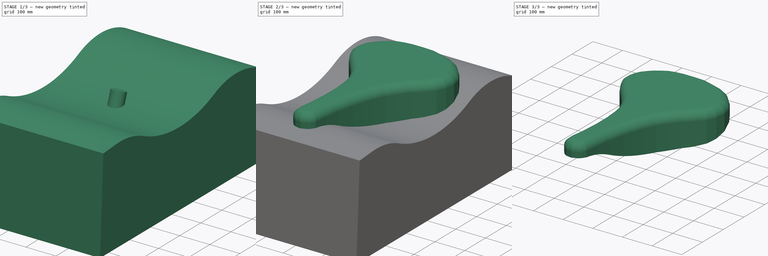
[diagram: build sequence overview — one tinted view per stage of 3, left to right]
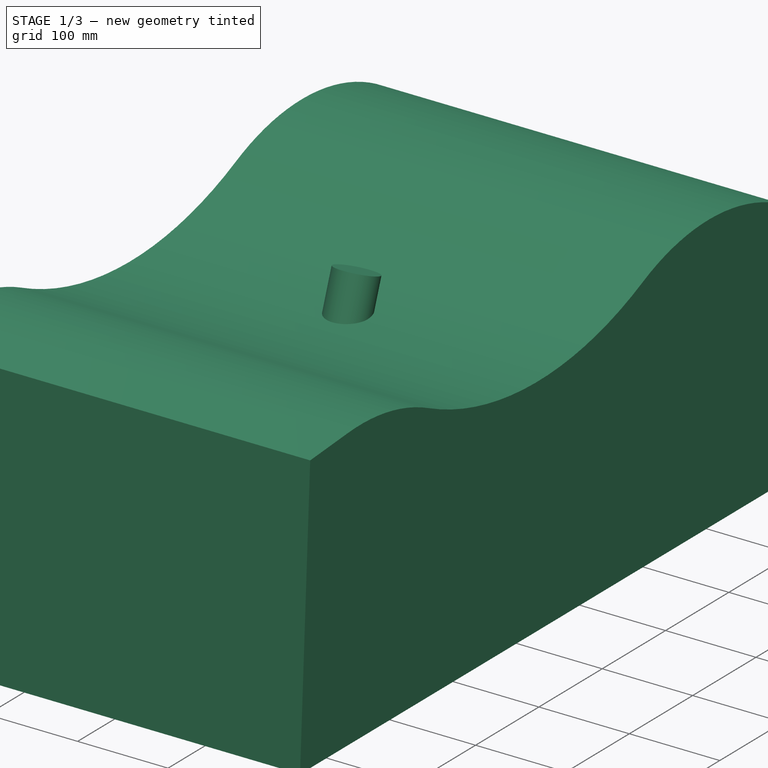
[diagram: stage 1 of 3 — iso view after this stage's code; geometry added in this stage tinted green]
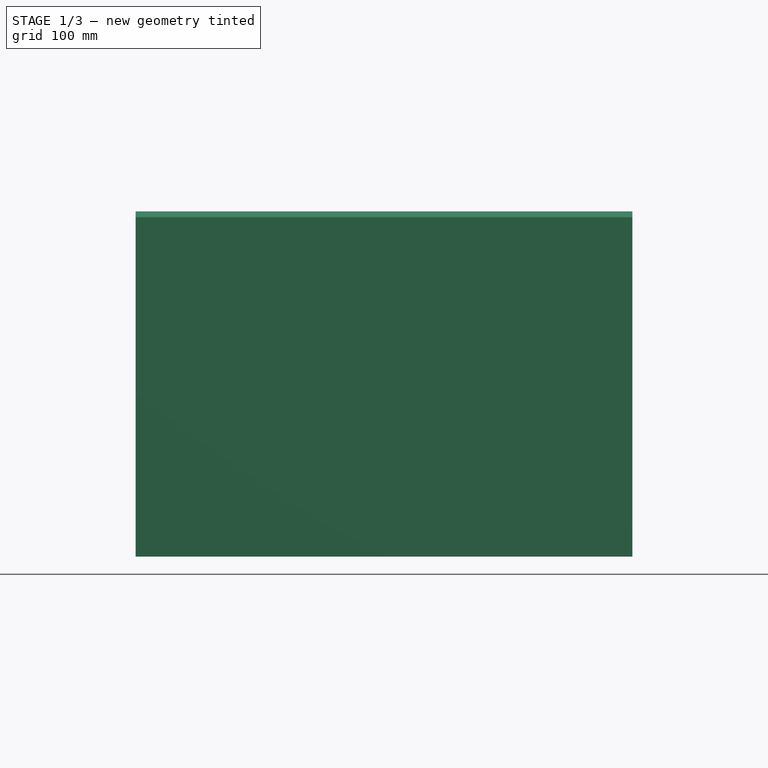
[diagram: stage 1 of 3 — front view after this stage's code; geometry added in this stage tinted green]
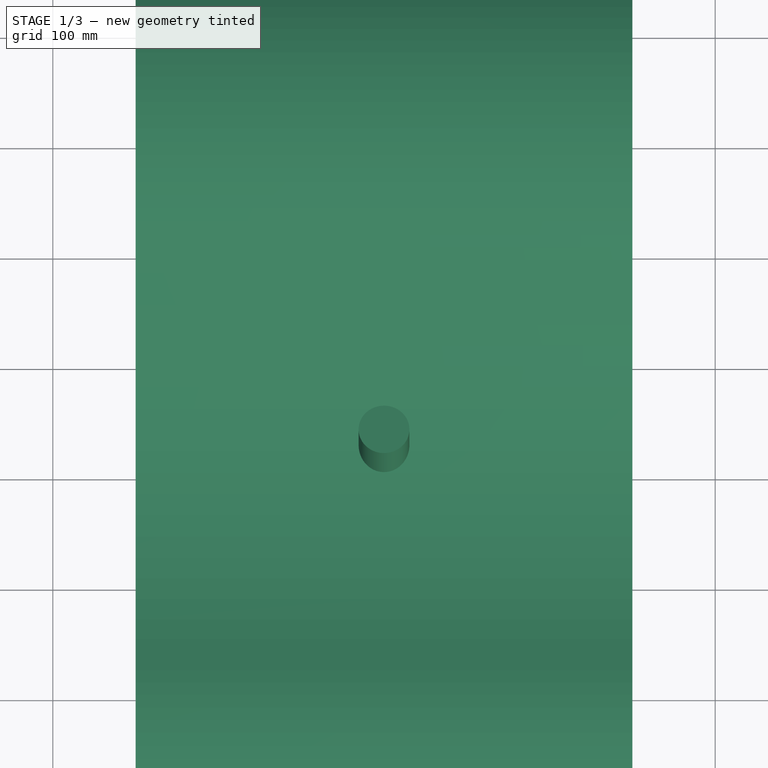
[diagram: stage 1 of 3 — top view after this stage's code; geometry added in this stage tinted green]
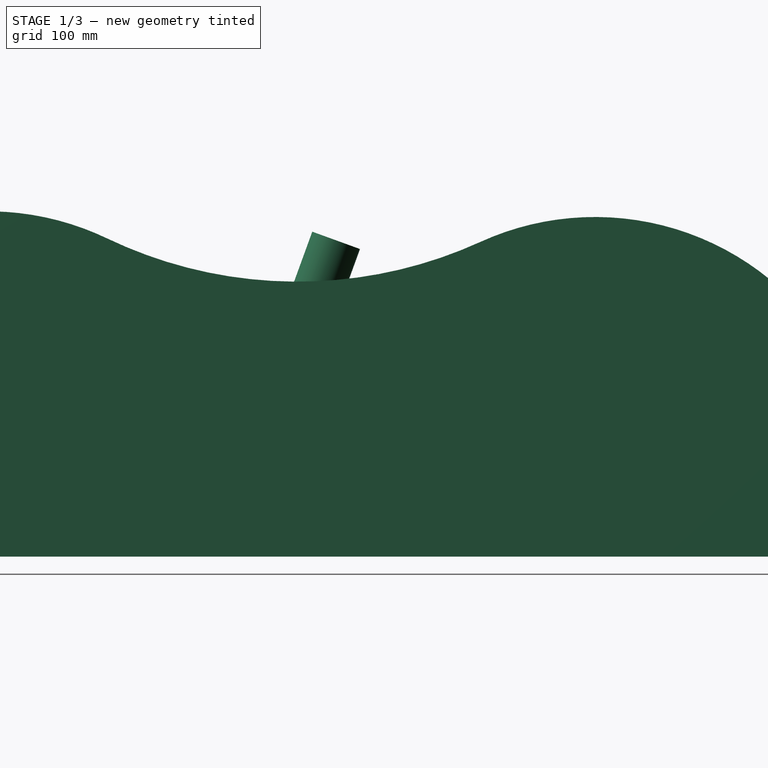
[diagram: stage 1 of 3 — right view after this stage's code; geometry added in this stage tinted green]
FCSTD DOCUMENT  (FreeCAD 0.16R)
Label: SeatBrooks
License: All rights reserved
LicenseURL: http://en.wikipedia.org/wiki/All_rights_reserved
objects: Sketcher::SketchObject×3, PartDesign::Pad×2, PartDesign::Fillet×2, Part::Cut×2, Image::ImagePlane×1, Part::Cylinder×1
note: 12 computed .brp shape members not serialized (recipe doc carries the construction recipe); baked Part::Feature solids carry a one-line shape summary decoded from their .brp

FEATURE [Sketcher::SketchObject] Sketch
  Placement = pos=(0,3.73655,35.5509) rot=(1,0,0;3.03687rad)
  sketch-geometry (1):
    g0: Circle CenterX=11.3368 CenterY=-95.2667 CenterZ=0 NormalX=0 NormalY=0 NormalZ=1 Radius=40
  constraints (1):
    c: Radius(g0) = 40
FEATURE [Sketcher::SketchObject] Sketch004
  Placement = pos=(0,0,0) rot=(0.57735,0.57735,0.57735;2.0944rad)
  sketch-geometry (7):
    g0: ArcOfCircle CenterX=-275 CenterY=-175.307 CenterZ=0 NormalX=0 NormalY=0 NormalZ=1 Radius=250 StartAngle=1.12409 EndAngle=1.6477
    g1: ArcOfCircle CenterX=5.51294 CenterY=410.316 CenterZ=0 NormalX=0 NormalY=0 NormalZ=1 Radius=399.34 StartAngle=4.26568 EndAngle=5.14035
    g2: ArcOfCircle CenterX=275 CenterY=-180.462 CenterZ=0 NormalX=0 NormalY=0 NormalZ=1 Radius=250 StartAngle=0.789149 EndAngle=1.99876
    g3: LineSegment StartX=-294.206 StartY=73.9538 StartZ=0 EndX=-354.007 EndY=69.346 EndZ=0
    g4: LineSegment StartX=-354.007 StartY=69.346 StartZ=0 EndX=-369.997 EndY=-238.126 EndZ=0
    g5: LineSegment StartX=-369.997 StartY=-238.126 StartZ=0 EndX=537.75 EndY=-238.126 EndZ=0
    g6: LineSegment StartX=537.75 StartY=-238.126 StartZ=0 EndX=451.112 EndY=-3.02373 EndZ=0
  constraints (14):
    c: Coincident(g1,g2)
    c: Tangent(g1,g2)
    c: Coincident(g1,g0)
    c: Tangent(g1,g0)
    c: DistanceX(g2) = 275
    c: DistanceX(g0) = -275
    c: Radius(g2) = 250
    c: Radius(g0) = 250
    c: Tangent(g0,g3) = -1.5708
    c: Coincident(g3,g4)
    c: Coincident(g4,g5)
    c: Horizontal(g5)
    c: Coincident(g5,g6)
    c: Coincident(g6,g2)
FEATURE [PartDesign::Pad] Pad001
  Length = 450
  Length2 = 100
  Midplane = true
  Placement = pos=(0,0,0) rot=(0.57735,0.57735,0.57735;2.0944rad)
  Sketch = -> Sketch004
  Type = 0
FEATURE [Part::Cylinder] Cylinder
  Angle = 360
  Height = 60
  Placement = pos=(0,20,-8) rot=(-1,0,0;0.349066rad)
  Radius = 23
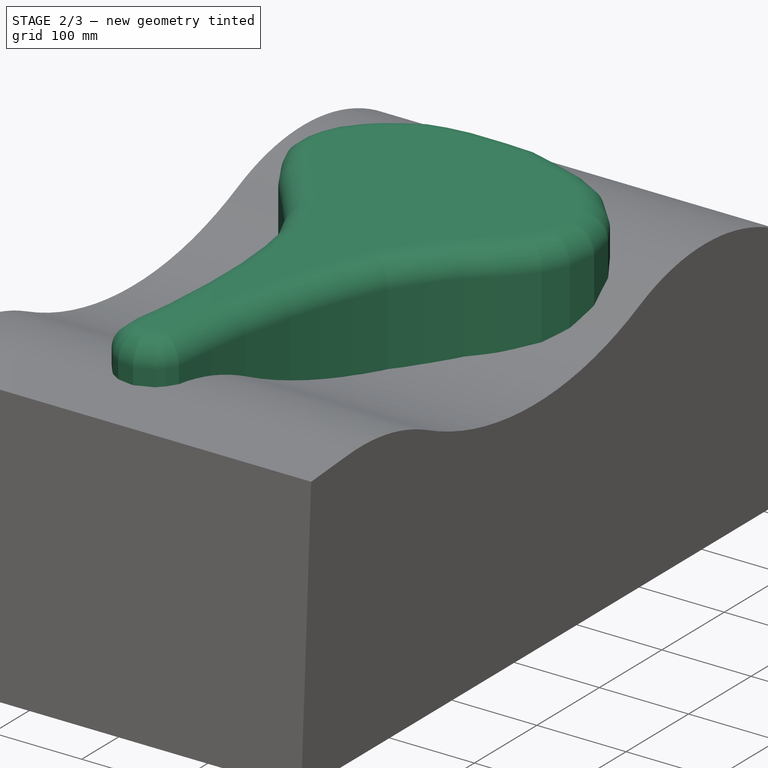
[diagram: stage 2 of 3 — iso view after this stage's code; geometry added in this stage tinted green]
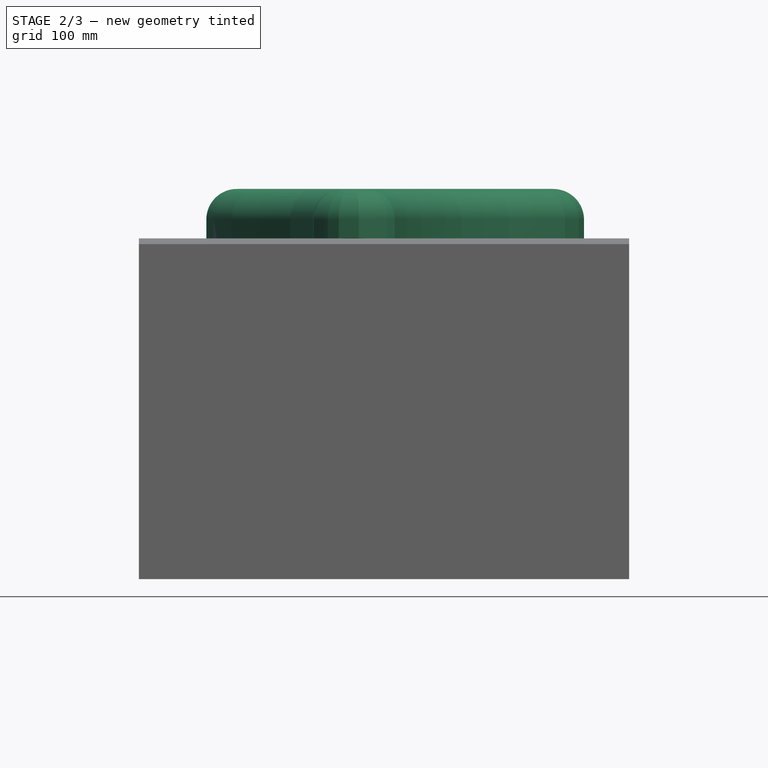
[diagram: stage 2 of 3 — front view after this stage's code; geometry added in this stage tinted green]
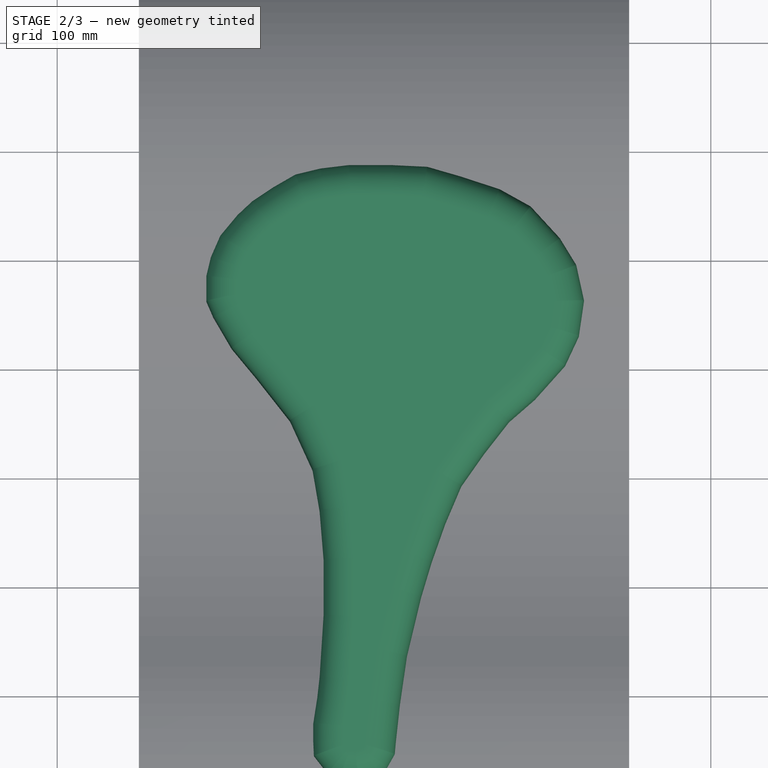
[diagram: stage 2 of 3 — top view after this stage's code; geometry added in this stage tinted green]
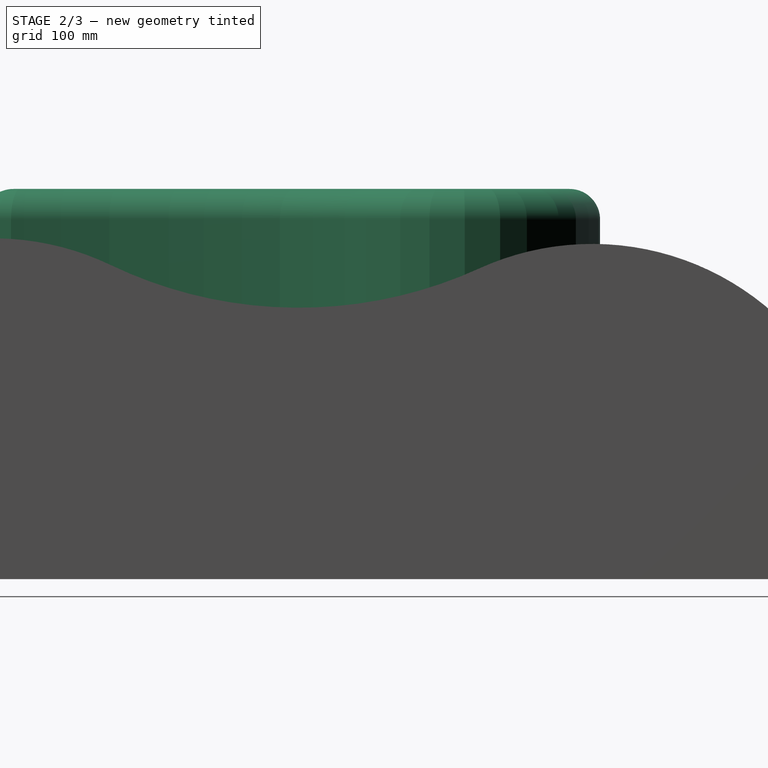
[diagram: stage 2 of 3 — right view after this stage's code; geometry added in this stage tinted green]
FEATURE [Image::ImagePlane] ImagePlane
  XSize = 396
  YSize = 596
FEATURE [Sketcher::SketchObject] Sketch003
  sketch-geometry (50):
    g0: LineSegment StartX=-59.0617 StartY=-187.443 StartZ=0 EndX=-55.4267 EndY=-130.742 EndZ=0
    g1: LineSegment StartX=-55.4267 StartY=-130.742 StartZ=0 EndX=-55.4267 EndY=-79.3256 EndZ=0
    g2: LineSegment StartX=-55.4267 StartY=-79.3256 StartZ=0 EndX=-59.1372 EndY=-34.27 EndZ=0
    g3: LineSegment StartX=-59.1372 StartY=-34.27 StartZ=0 EndX=-65.498 EndY=2.83452 EndZ=0
    g4: LineSegment StartX=-65.498 StartY=2.83452 StartZ=0 EndX=-86.1705 EndY=47.8901 EndZ=0
    g5: LineSegment StartX=-86.1705 StartY=47.8901 StartZ=0 EndX=-117.092 EndY=87.0917 EndZ=0
    g6: LineSegment StartX=-117.092 StartY=87.0917 StartZ=0 EndX=-139.752 EndY=114.284 EndZ=0
    g7: LineSegment StartX=-139.752 StartY=114.284 StartZ=0 EndX=-156.585 EndY=142.77 EndZ=0
    g8: LineSegment StartX=-156.585 StartY=142.77 StartZ=0 EndX=-163.06 EndY=157.661 EndZ=0
    g9: LineSegment StartX=-163.06 StartY=157.661 StartZ=0 EndX=-163.06 EndY=180.321 EndZ=0
    g10: LineSegment StartX=-163.06 StartY=180.321 StartZ=0 EndX=-158.905 EndY=197.667 EndZ=0
    g11: LineSegment StartX=-158.905 StartY=197.667 StartZ=0 EndX=-150.207 EndY=217.437 EndZ=0
    g12: LineSegment StartX=-150.207 StartY=217.437 StartZ=0 EndX=-134.392 EndY=236.415 EndZ=0
    g13: LineSegment StartX=-134.392 StartY=236.415 StartZ=0 EndX=-120.877 EndY=248.991 EndZ=0
    g14: LineSegment StartX=-120.877 StartY=248.991 StartZ=0 EndX=-101.899 EndY=261.644 EndZ=0
    g15: LineSegment StartX=-101.899 StartY=261.644 StartZ=0 EndX=-81.3389 EndY=273.505 EndZ=0
    g16: LineSegment StartX=-81.3389 StartY=273.505 StartZ=0 EndX=-58.4067 EndY=279.04 EndZ=0
    g17: LineSegment StartX=-58.4067 StartY=279.04 StartZ=0 EndX=-32.3115 EndY=282.203 EndZ=0
    g18: LineSegment StartX=-32.3115 StartY=282.203 StartZ=0 EndX=6.43597 EndY=282.203 EndZ=0
    g19: LineSegment StartX=6.43597 StartY=282.203 StartZ=0 EndX=39.6481 EndY=280.622 EndZ=0
    g20: LineSegment StartX=39.6481 StartY=280.622 StartZ=0 EndX=69.6971 EndY=271.924 EndZ=0
    g21: LineSegment StartX=69.6971 StartY=271.924 StartZ=0 EndX=106.072 EndY=260.062 EndZ=0
    g22: LineSegment StartX=106.072 StartY=260.062 StartZ=0 EndX=134.54 EndY=244.247 EndZ=0
    g23: LineSegment StartX=134.54 StartY=244.247 StartZ=0 EndX=161.426 EndY=214.988 EndZ=0
    g24: LineSegment StartX=161.426 StartY=214.988 StartZ=0 EndX=176.45 EndY=190.475 EndZ=0
    g25: LineSegment StartX=176.45 StartY=190.475 StartZ=0 EndX=183.567 EndY=158.053 EndZ=0
    g26: LineSegment StartX=183.567 StartY=158.053 StartZ=0 EndX=178.823 EndY=125.632 EndZ=0
    g27: LineSegment StartX=178.823 StartY=125.632 StartZ=0 EndX=166.17 EndY=98.7461 EndZ=0
    g28: LineSegment StartX=166.17 StartY=98.7461 StartZ=0 EndX=138.494 EndY=67.9063 EndZ=0
    g29: LineSegment StartX=138.494 StartY=67.9063 StartZ=0 EndX=114.771 EndY=47.3464 EndZ=0
    g30: LineSegment StartX=114.771 StartY=47.3464 StartZ=0 EndX=91.8385 EndY=18.0881 EndZ=0
    g31: LineSegment StartX=91.8385 StartY=18.0881 StartZ=0 EndX=70.8997 EndY=-11.6832 EndZ=0
    g32: LineSegment StartX=70.8997 StartY=-11.6832 StartZ=0 EndX=56.0089 EndY=-46.6441 EndZ=0
    g33: LineSegment StartX=56.0089 StartY=-46.6441 StartZ=0 EndX=43.7079 EndY=-81.6049 EndZ=0
    g34: LineSegment StartX=43.7079 StartY=-81.6049 StartZ=0 EndX=33.9966 EndY=-113.976 EndZ=0
    g35: LineSegment StartX=33.9966 StartY=-113.976 StartZ=0 EndX=21.0481 EndY=-168.36 EndZ=0
    g36: LineSegment StartX=21.0481 StartY=-168.36 StartZ=0 EndX=14.6173 EndY=-212.886 EndZ=0
    g37: LineSegment StartX=14.6173 StartY=-212.886 StartZ=0 EndX=10.9069 EndY=-246.81 EndZ=0
    g38: LineSegment StartX=10.9069 StartY=-246.81 StartZ=0 EndX=9.84675 EndY=-258.472 EndZ=0
    g39: LineSegment StartX=9.84675 StartY=-258.472 StartZ=0 EndX=2.95589 EndY=-270.663 EndZ=0
    g40: LineSegment StartX=2.95589 StartY=-270.663 StartZ=0 EndX=-3.93494 EndY=-277.554 EndZ=0
    g41: LineSegment StartX=-3.93494 StartY=-277.554 StartZ=0 EndX=-23.0173 EndY=-284.975 EndZ=0
    g42: LineSegment StartX=-23.0173 StartY=-284.975 StartZ=0 EndX=-41.5696 EndY=-282.325 EndZ=0
    g43: LineSegment StartX=-41.5696 StartY=-282.325 StartZ=0 EndX=-51.6408 EndY=-275.964 EndZ=0
    g44: LineSegment StartX=-51.6408 StartY=-275.964 StartZ=0 EndX=-55.3513 EndY=-271.723 EndZ=0
    g45: LineSegment StartX=-55.3513 StartY=-271.723 StartZ=0 EndX=-64.3624 EndY=-260.062 EndZ=0
    g46: LineSegment StartX=-64.3624 StartY=-260.062 StartZ=0 EndX=-64.8924 EndY=-247.34 EndZ=0
    g47: LineSegment StartX=-64.8924 StartY=-247.34 StartZ=0 EndX=-64.8924 EndY=-230.378 EndZ=0
    g48: LineSegment StartX=-64.8924 StartY=-230.378 StartZ=0 EndX=-61.182 EndY=-206.525 EndZ=0
    g49: LineSegment StartX=-61.182 StartY=-206.525 StartZ=0 EndX=-59.0617 EndY=-187.443 EndZ=0
  constraints (54):
    c: Coincident(g0,g1)
    c: Vertical(g1)
    c: Coincident(g1,g2)
    c: Coincident(g2,g3)
    c: Coincident(g3,g4)
    c: Coincident(g4,g5)
    c: Coincident(g5,g6)
    c: Coincident(g6,g7)
    c: Coincident(g7,g8)
    c: Coincident(g8,g9)
    c: Vertical(g9)
    c: Coincident(g9,g10)
    c: Coincident(g10,g11)
    c: Coincident(g11,g12)
    c: Coincident(g12,g13)
    c: Coincident(g13,g14)
    c: Coincident(g14,g15)
    c: Coincident(g15,g16)
    c: Coincident(g16,g17)
    c: Coincident(g17,g18)
    c: Horizontal(g18)
    c: Coincident(g18,g19)
    c: Coincident(g19,g20)
    c: Coincident(g20,g21)
    c: Coincident(g21,g22)
    c: Coincident(g22,g23)
    c: Coincident(g23,g24)
    c: Coincident(g24,g25)
    c: Coincident(g25,g26)
    c: Coincident(g26,g27)
    c: Coincident(g27,g28)
    c: Coincident(g28,g29)
    c: Coincident(g29,g30)
    c: Coincident(g30,g31)
    c: Coincident(g31,g32)
    c: Coincident(g32,g33)
    c: Coincident(g33,g34)
    c: Coincident(g34,g35)
    c: Coincident(g35,g36)
    c: Coincident(g36,g37)
    c: Coincident(g37,g38)
    c: Coincident(g38,g39)
    c: Coincident(g39,g40)
    c: Coincident(g40,g41)
    c: Coincident(g41,g42)
    c: Coincident(g42,g43)
    c: Coincident(g43,g44)
    c: Coincident(g44,g45)
    c: Coincident(g45,g46)
    c: Coincident(g46,g47)
    c: Vertical(g47)
    c: Coincident(g47,g48)
    c: Coincident(g48,g49)
    c: Coincident(g49,g0)
FEATURE [PartDesign::Pad] Pad
  Length = 120
  Length2 = 100
  Sketch = -> Sketch003
  Type = 0
FEATURE [PartDesign::Fillet] Fillet
  Base = -> Pad [Edge4,Edge7,Edge10,Edge13,Edge16,Edge19,Edge22,Edge25,Edge28,Edge31,Edge34,Edge37,Edge40,Edge43,Edge46,Edge49,Edge52,Edge55,Edge58,Edge61,Edge64,Edge67,Edge70,Edge73,Edge76,Edge79,Edge82,Edge85,Edge88,Edge91,Edge94,Edge97,Edge100,Edge103,Edge106,Edge109,Edge112,Edge115,Edge118,Edge121,+10 more]
  Radius = 28
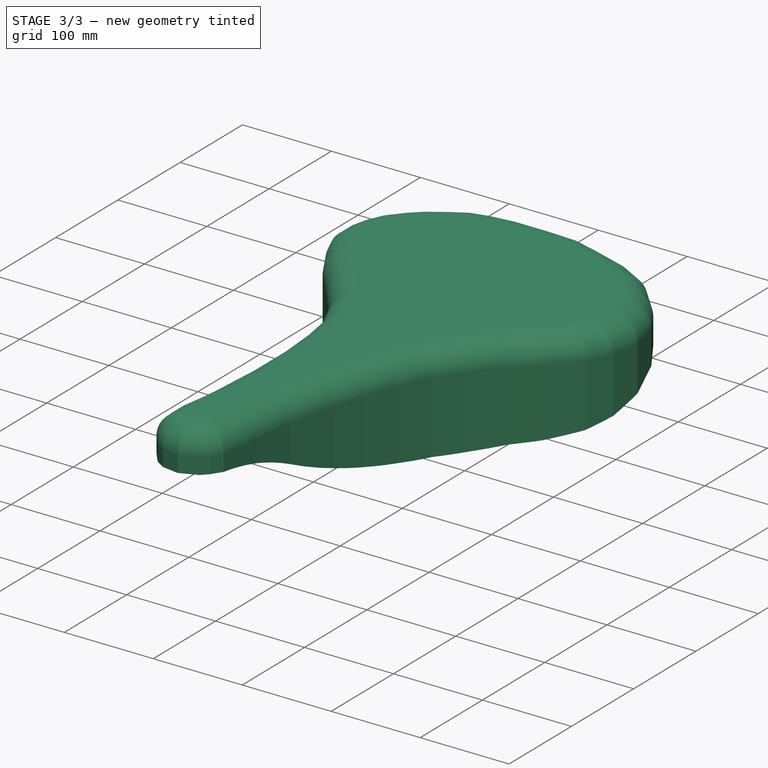
[diagram: stage 3 of 3 — iso view after this stage's code; geometry added in this stage tinted green]
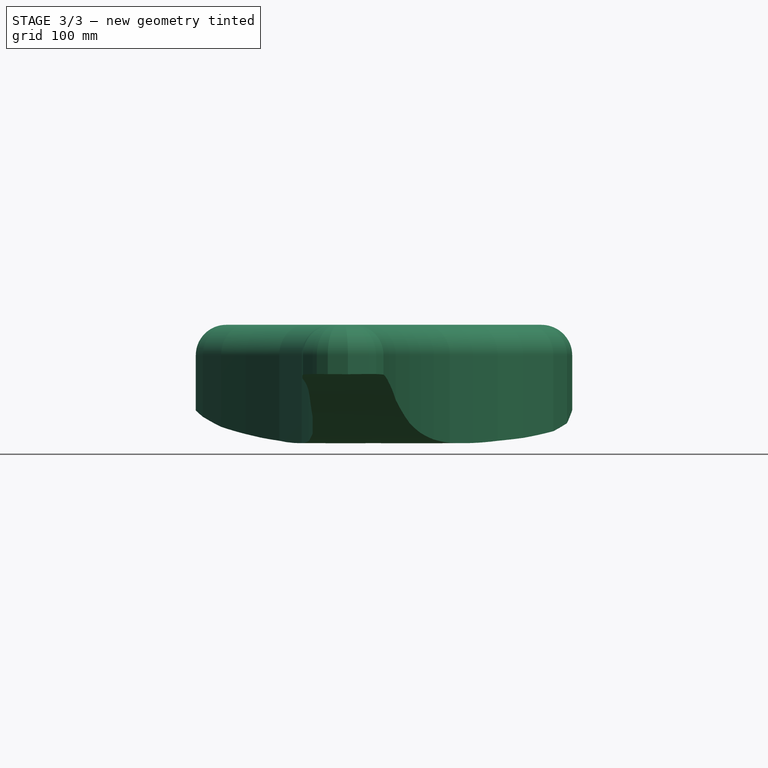
[diagram: stage 3 of 3 — front view after this stage's code; geometry added in this stage tinted green]
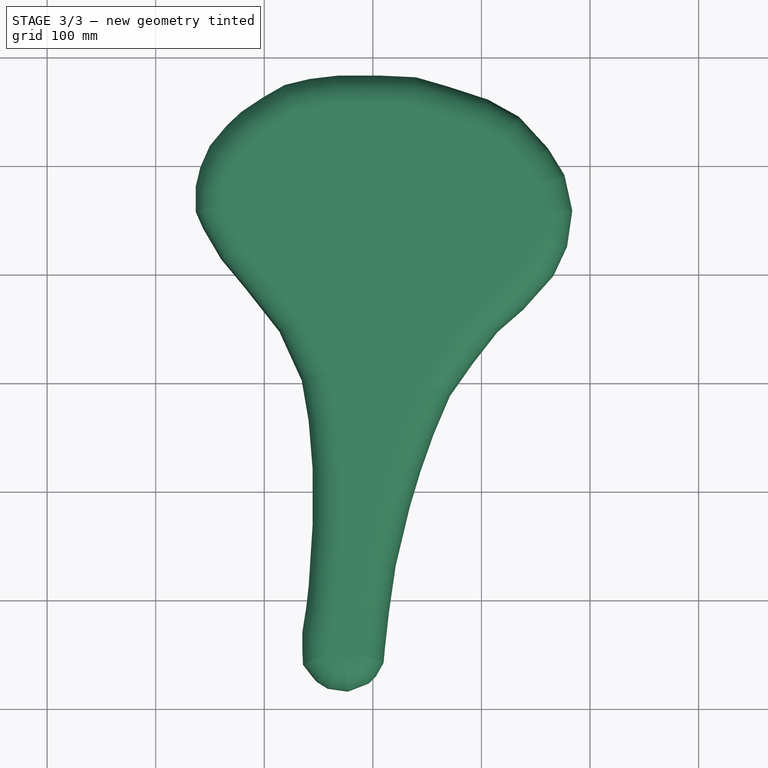
[diagram: stage 3 of 3 — top view after this stage's code; geometry added in this stage tinted green]
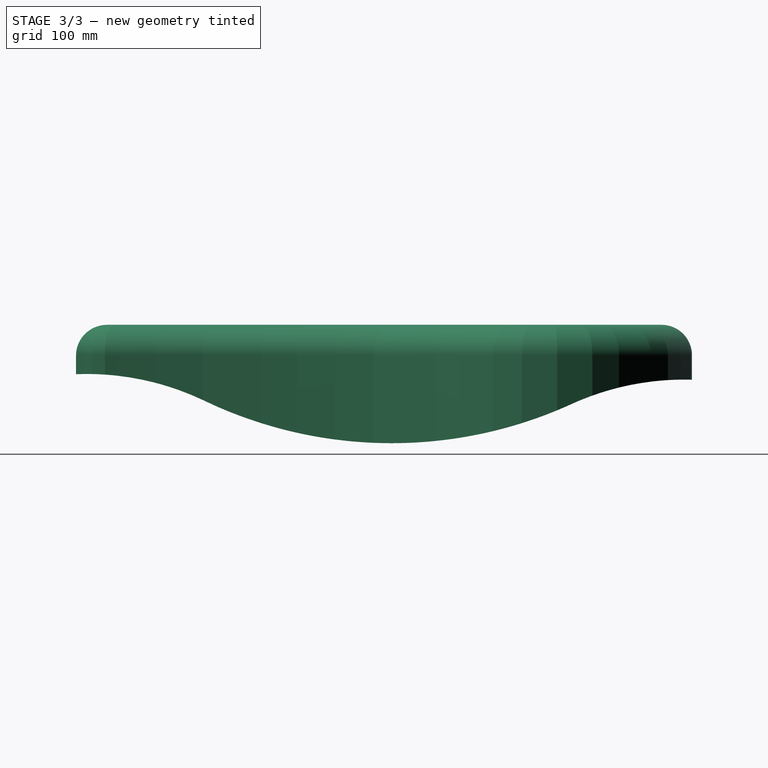
[diagram: stage 3 of 3 — right view after this stage's code; geometry added in this stage tinted green]
FEATURE [Part::Cut] Cut
  Base = -> Fillet
  Tool = -> Pad001
FEATURE [Part::Cut] Cut001
  Base = -> Cut
  Tool = -> Cylinder
FEATURE [PartDesign::Fillet] Fillet001
  Base = -> Cut001 [Edge2,Edge22,Edge23,Edge24,Edge25,Edge26,Edge27,Edge28,Edge29,Edge30,Edge31,Edge32,Edge33,Edge34,Edge35,Edge36,Edge37,Edge38,Edge40,Edge41,Edge42,Edge43,Edge110,Edge111,Edge112,Edge113,Edge114,Edge115,Edge116,Edge117,Edge118,Edge119,Edge120,Edge121,Edge122,Edge123,Edge124,Edge125,Edge105,Edge1,+15 more]
  Radius = 1
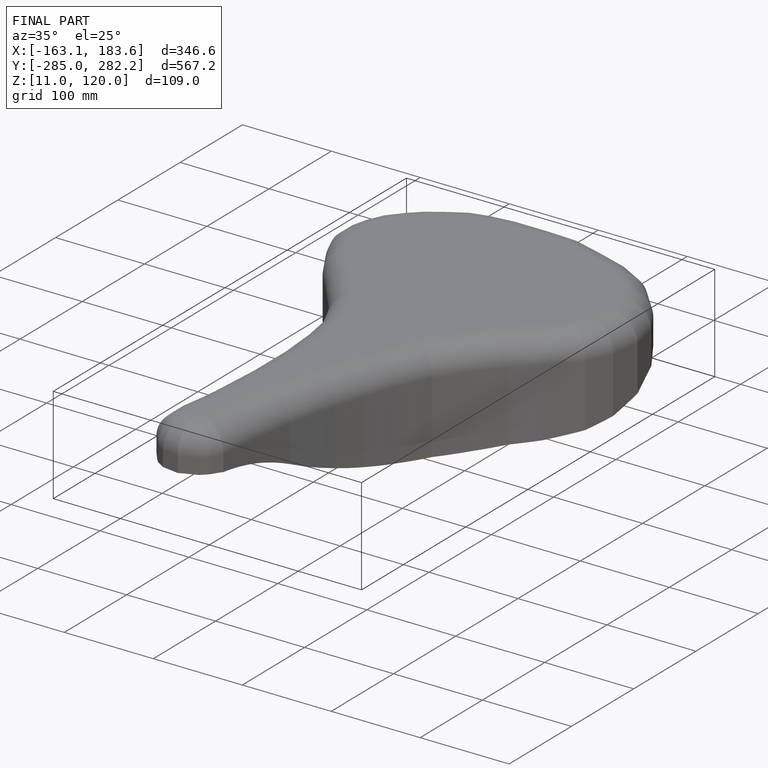
[diagram: finished part — iso view with bounding-box wireframe]
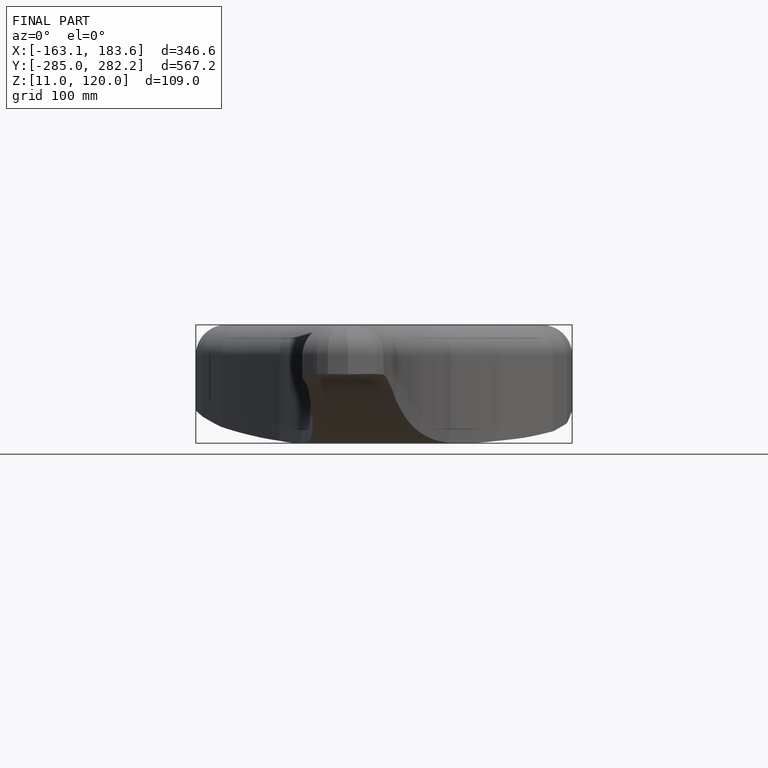
[diagram: finished part — front view with bounding-box wireframe]
